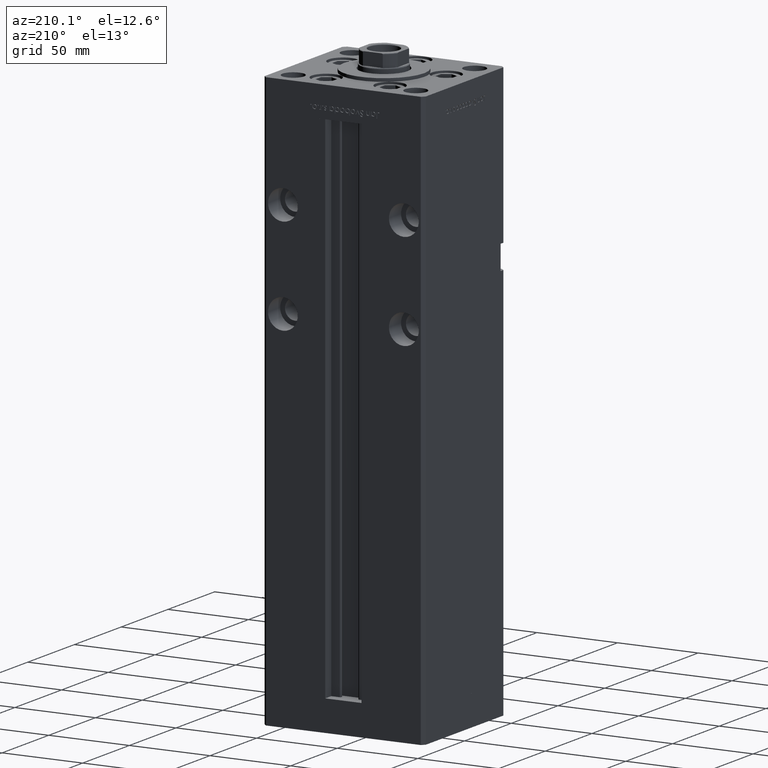
[diagram: clean part render]
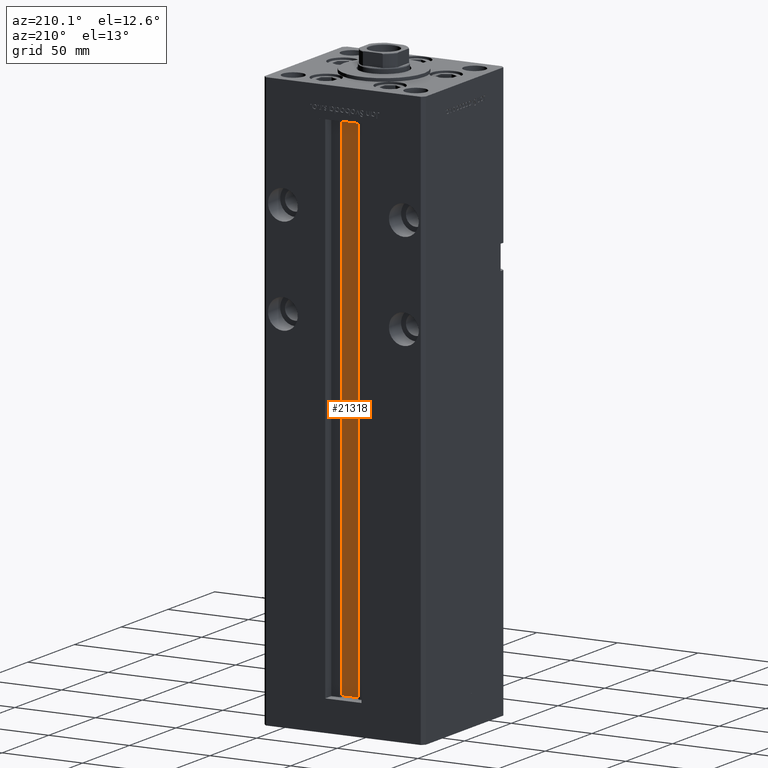
[diagram: same view with one face highlighted and labeled with its STEP entity id]
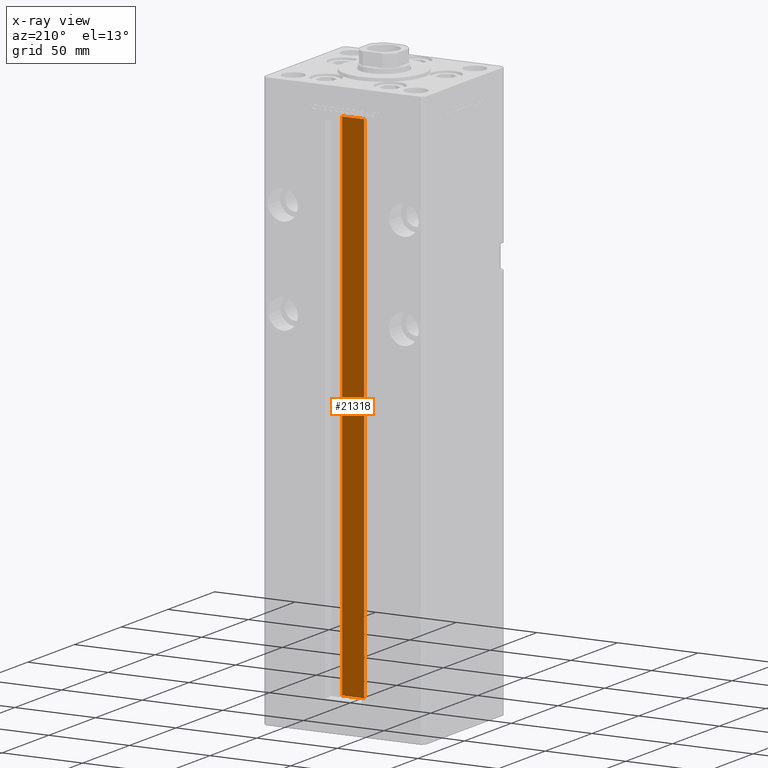
[diagram: x-ray of the same camera — body ghosted, the highlighted face saturated]
A machine part, auxiliary view. The second image highlights one B-rep face of the part: STEP entity #21318.
The next image is the same camera in x-ray: the body ghosted, the highlighted face saturated — about 0% of this face is hidden behind the body in this view.
In plain terms, the highlighted planar face has unit normal (0, -1, 0).
Its self-contained STEP definition (entity closure, byte-faithful):
#1882 = ORIENTED_EDGE ( 'NONE', *, *, #40867, .F. ) ;
#6969 = CARTESIAN_POINT ( 'NONE',  ( -6.876153656360465050, 32.99999999999986500, 318.5000000000000000 ) ) ;
#7677 = LINE ( 'NONE', #23803, #8279 ) ;
#8279 = VECTOR ( 'NONE', #44485, 1000.000000000000000 ) ;
#8418 = EDGE_CURVE ( 'NONE', #28999, #44196, #7677, .T. ) ;
#12194 = VECTOR ( 'NONE', #19144, 1000.000000000000000 ) ;
#13330 = CARTESIAN_POINT ( 'NONE',  ( 6.876153656360465050, 32.99999999999986500, 318.5000000000000000 ) ) ;
#13903 = CARTESIAN_POINT ( 'NONE',  ( -6.876153656360465050, 32.99999999999986500, 0.000000000000000000 ) ) ;
#15215 = CARTESIAN_POINT ( 'NONE',  ( 6.876153656360465050, 32.99999999999986500, 0.000000000000000000 ) ) ;
#19144 = DIRECTION ( 'NONE',  ( -1.000000000000000000, 0.000000000000000000, 0.000000000000000000 ) ) ;
#20268 = FACE_OUTER_BOUND ( 'NONE', #30894, .T. ) ;
#21318 = ADVANCED_FACE ( 'NONE', ( #20268 ), #43679, .F. ) ;
#23245 = DIRECTION ( 'NONE',  ( 0.000000000000000000, -1.000000000000000000, -0.000000000000000000 ) ) ;
#23803 = CARTESIAN_POINT ( 'NONE',  ( 6.876153656360465050, 32.99999999999986500, 0.000000000000000000 ) ) ;
#24454 = VECTOR ( 'NONE', #47457, 1000.000000000000000 ) ;
#24966 = VECTOR ( 'NONE', #38619, 1000.000000000000000 ) ;
#26671 = LINE ( 'NONE', #48143, #12194 ) ;
#27538 = CARTESIAN_POINT ( 'NONE',  ( 6.876153656360465050, 32.99999999999986500, 0.000000000000000000 ) ) ;
#28050 = DIRECTION ( 'NONE',  ( 0.000000000000000000, 0.000000000000000000, -1.000000000000000000 ) ) ;
#28814 = ORIENTED_EDGE ( 'NONE', *, *, #8418, .F. ) ;
#28999 = VERTEX_POINT ( 'NONE', #29103 ) ;
#29103 = CARTESIAN_POINT ( 'NONE',  ( -6.876153656360465050, 32.99999999999986500, 0.000000000000000000 ) ) ;
#30894 = EDGE_LOOP ( 'NONE', ( #44544, #28814, #52758, #1882 ) ) ;
#35099 = LINE ( 'NONE', #47720, #24454 ) ;
#36830 = EDGE_CURVE ( 'NONE', #28999, #40388, #50688, .T. ) ;
#38619 = DIRECTION ( 'NONE',  ( -0.000000000000000000, -0.000000000000000000, 1.000000000000000000 ) ) ;
#40388 = VERTEX_POINT ( 'NONE', #6969 ) ;
#40867 = EDGE_CURVE ( 'NONE', #51488, #40388, #26671, .T. ) ;
#42631 = AXIS2_PLACEMENT_3D ( 'NONE', #27538, #23245, #28050 ) ;
#43679 = PLANE ( 'NONE',  #42631 ) ;
#44196 = VERTEX_POINT ( 'NONE', #15215 ) ;
#44485 = DIRECTION ( 'NONE',  ( 1.000000000000000000, -0.000000000000000000, -0.000000000000000000 ) ) ;
#44544 = ORIENTED_EDGE ( 'NONE', *, *, #49404, .F. ) ;
#47457 = DIRECTION ( 'NONE',  ( -0.000000000000000000, -0.000000000000000000, 1.000000000000000000 ) ) ;
#47720 = CARTESIAN_POINT ( 'NONE',  ( 6.876153656360465050, 32.99999999999986500, 0.000000000000000000 ) ) ;
#48143 = CARTESIAN_POINT ( 'NONE',  ( 0.000000000000000000, 32.99999999999986500, 318.5000000000000000 ) ) ;
#49404 = EDGE_CURVE ( 'NONE', #44196, #51488, #35099, .T. ) ;
#50688 = LINE ( 'NONE', #13903, #24966 ) ;
#51488 = VERTEX_POINT ( 'NONE', #13330 ) ;
#52758 = ORIENTED_EDGE ( 'NONE', *, *, #36830, .T. ) ;